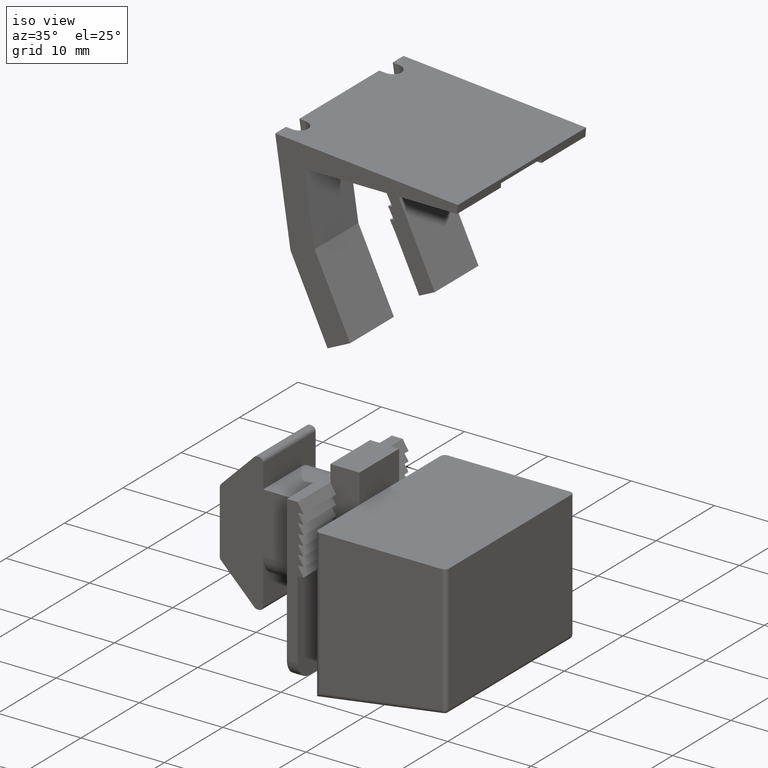
[diagram: clean part render]
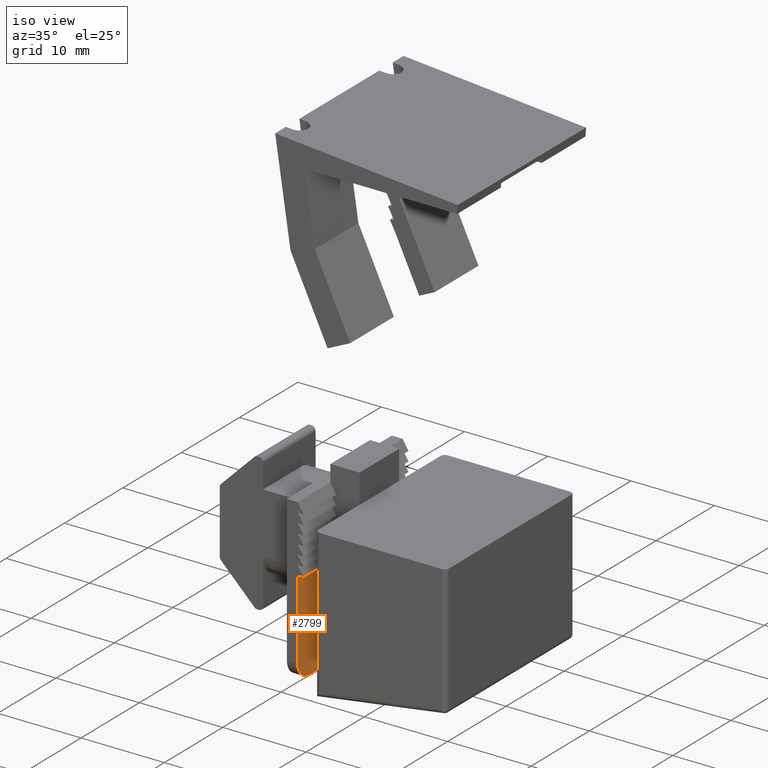
[diagram: same view with one face highlighted and labeled with its STEP entity id]
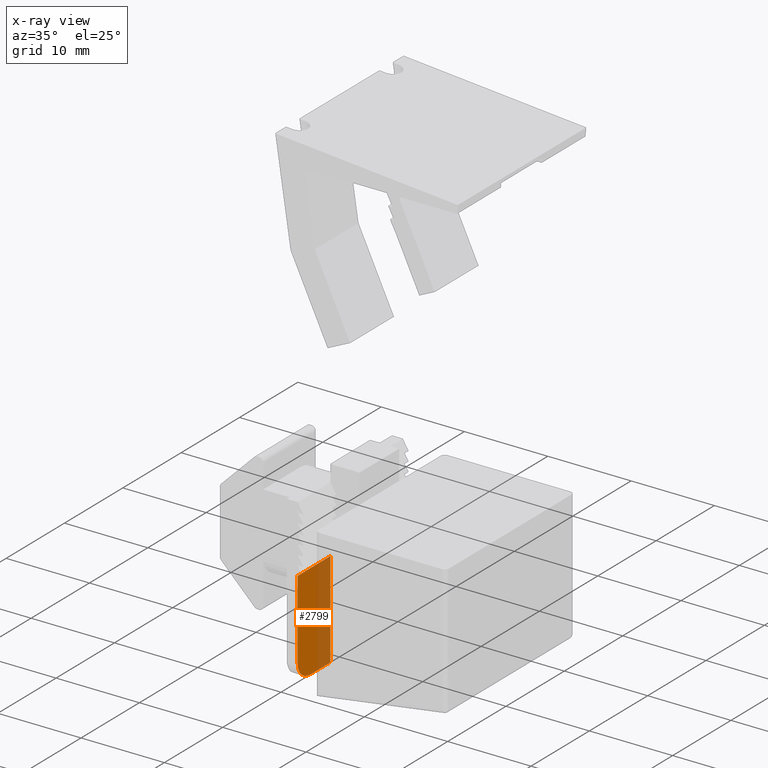
[diagram: x-ray of the same camera — body ghosted, the highlighted face saturated]
A machine part, iso view. The second image highlights one B-rep face of the part: STEP entity #2799.
The next image is the same camera in x-ray: the body ghosted, the highlighted face saturated — about 38% of this face is hidden behind the body in this view.
In plain terms, the highlighted planar face has unit normal (1, 0, 0).
Its self-contained STEP definition (entity closure, byte-faithful):
#34=PLANE('',#2971);
#172=FACE_OUTER_BOUND('',#322,.T.);
#322=EDGE_LOOP('',(#2001,#2002,#2003,#2004,#2005));
#468=CIRCLE('',#2969,2.);
#527=LINE('',#3998,#900);
#528=LINE('',#4000,#901);
#529=LINE('',#4002,#902);
#530=LINE('',#4003,#903);
#900=VECTOR('',#3235,3.6);
#901=VECTOR('',#3236,11.5);
#902=VECTOR('',#3237,5.6);
#903=VECTOR('',#3238,9.5);
#1275=VERTEX_POINT('',#3988);
#1276=VERTEX_POINT('',#3989);
#1279=VERTEX_POINT('',#3997);
#1280=VERTEX_POINT('',#3999);
#1281=VERTEX_POINT('',#4001);
#1561=EDGE_CURVE('',#1275,#1276,#468,.T.);
#1565=EDGE_CURVE('',#1279,#1275,#527,.T.);
#1566=EDGE_CURVE('',#1279,#1280,#528,.T.);
#1567=EDGE_CURVE('',#1280,#1281,#529,.T.);
#1568=EDGE_CURVE('',#1276,#1281,#530,.T.);
#2001=ORIENTED_EDGE('',*,*,#1561,.F.);
#2002=ORIENTED_EDGE('',*,*,#1565,.F.);
#2003=ORIENTED_EDGE('',*,*,#1566,.T.);
#2004=ORIENTED_EDGE('',*,*,#1567,.T.);
#2005=ORIENTED_EDGE('',*,*,#1568,.F.);
#2799=ADVANCED_FACE('',(#172),#34,.T.);
#2969=AXIS2_PLACEMENT_3D('',#3990,#3227,#3228);
#2971=AXIS2_PLACEMENT_3D('',#3996,#3233,#3234);
#3227=DIRECTION('center_axis',(-1.,0.,0.));
#3228=DIRECTION('ref_axis',(0.,0.707106781186548,0.707106781186547));
#3233=DIRECTION('center_axis',(1.,0.,0.));
#3234=DIRECTION('ref_axis',(0.,0.,-1.));
#3235=DIRECTION('',(0.,1.,0.));
#3236=DIRECTION('',(0.,0.,-1.));
#3237=DIRECTION('',(0.,1.,0.));
#3238=DIRECTION('',(0.,0.,-1.));
#3988=CARTESIAN_POINT('',(1.3,7.,19.5));
#3989=CARTESIAN_POINT('',(1.3,9.,17.5));
#3990=CARTESIAN_POINT('Origin',(1.3,7.,17.5));
#3996=CARTESIAN_POINT('Origin',(1.3,0.,19.5));
#3997=CARTESIAN_POINT('',(1.3,3.4,19.5));
#3998=CARTESIAN_POINT('',(1.3,0.,19.5));
#3999=CARTESIAN_POINT('',(1.3,3.4,8.));
#4000=CARTESIAN_POINT('',(1.3,3.4,13.8848096488769));
#4001=CARTESIAN_POINT('',(1.3,9.,8.));
#4002=CARTESIAN_POINT('',(1.3,0.,8.));
#4003=CARTESIAN_POINT('',(1.3,9.,19.5));